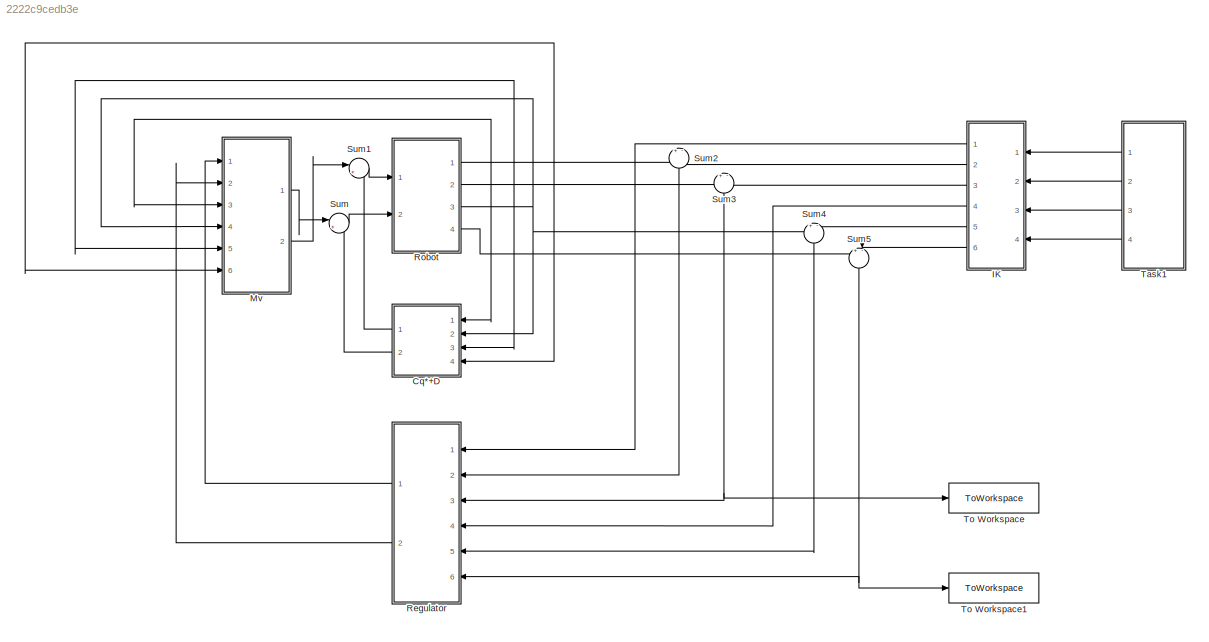
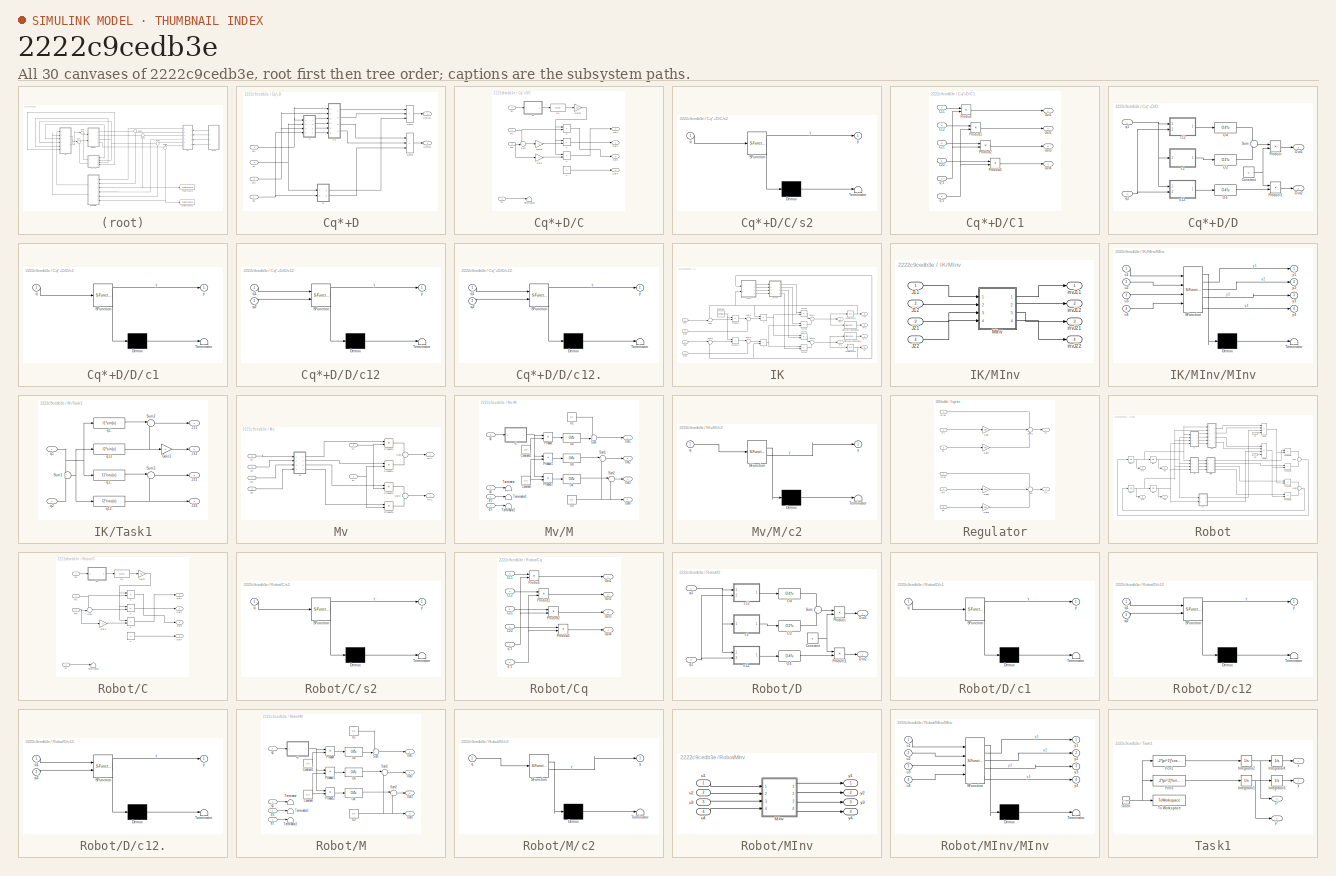
[diagram: thumbnail index - all 30 canvases of the model, root first then tree order]
MODEL slx_2222c9cedb3e
KIND model
CONFIG AbsTol = auto
CONFIG EnableMultiTasking = off
CONFIG FixedStep = 0.4
CONFIG MaxStep = auto
CONFIG MinStep = auto
CONFIG RelTol = 1e-6
CONFIG SampleTimeConstraint = Unconstrained
CONFIG Solver = ode45
CONFIG SolverName = ode45
CONFIG StartTime = 0.0
CONFIG StopTime = T
BLOCK [SubSystem] Cq*+D
  Ports = [4, 2]
  RequestExecContextInheritance = off
BLOCK [SubSystem] Cq*+D/C
  Ports = [4, 4]
  RequestExecContextInheritance = off
BLOCK [Product] Cq*+D/C/1
  Ports = [2, 1]
BLOCK [Product] Cq*+D/C/2
  Ports = [2, 1]
BLOCK [Product] Cq*+D/C/3
  Ports = [2, 1]
BLOCK [Constant] Cq*+D/C/4
  Value = 0
BLOCK [Gain] Cq*+D/C/Gain
  Gain = -1
BLOCK [Gain] Cq*+D/C/Gain1
  Gain = -1
BLOCK [Gain] Cq*+D/C/Gain2
  Gain = 0.3
BLOCK [Fcn] Cq*+D/C/O4
  Expr = O4*u
BLOCK [Outport] Cq*+D/C/Out1
BLOCK [Outport] Cq*+D/C/Out2
  Port = 2
BLOCK [Outport] Cq*+D/C/Out3
  Port = 3
BLOCK [Outport] Cq*+D/C/Out4
  Port = 4
BLOCK [Sum] Cq*+D/C/Sum
  Inputs = ++|
  Ports = [2, 1]
BLOCK [Terminator] Cq*+D/C/Terminator
BLOCK [Inport] Cq*+D/C/q*1
BLOCK [Inport] Cq*+D/C/q*2
  Port = 3
BLOCK [Inport] Cq*+D/C/q1
  Port = 2
BLOCK [Inport] Cq*+D/C/q2
  Port = 4
BLOCK [SubSystem] Cq*+D/C/s2
  ErrorFcn = Stateflow.Translate.translate
  PermitHierarchicalResolution = ExplicitOnly
  Ports = [1, 1]
  RequestExecContextInheritance = off
  SFBlockType = MATLAB Function
  TreatAsAtomicUnit = on
BLOCK [Demux] Cq*+D/C/s2/ Demux 
  Outputs = 1
  Ports = [1, 1]
BLOCK [S-Function] Cq*+D/C/s2/ SFunction 
  EnableBusSupport = on
  FunctionName = sf_sfun
  PortCounts = [1 2]
  Ports = [1, 2]
  SFcnIsStateOwnerBlock = off
  SFunctionDeploymentMode = off
  Tag = Stateflow S-Function 7
BLOCK [Terminator] Cq*+D/C/s2/ Terminator 
BLOCK [Inport] Cq*+D/C/s2/q
BLOCK [Outport] Cq*+D/C/s2/y
BLOCK [SubSystem] Cq*+D/C1
  Ports = [6, 4]
  RequestExecContextInheritance = off
BLOCK [Inport] Cq*+D/C1/C11
  Port = 3
BLOCK [Inport] Cq*+D/C1/C12
  Port = 4
BLOCK [Inport] Cq*+D/C1/C21
  Port = 5
BLOCK [Inport] Cq*+D/C1/C22
  Port = 6
BLOCK [Outport] Cq*+D/C1/Out1
BLOCK [Outport] Cq*+D/C1/Out2
  Port = 2
BLOCK [Outport] Cq*+D/C1/Out3
  Port = 3
BLOCK [Outport] Cq*+D/C1/Out4
  Port = 4
BLOCK [Product] Cq*+D/C1/Product
  Ports = [2, 1]
BLOCK [Product] Cq*+D/C1/Product1
  Ports = [2, 1]
BLOCK [Product] Cq*+D/C1/Product2
  Ports = [2, 1]
BLOCK [Product] Cq*+D/C1/Product3
  Ports = [2, 1]
BLOCK [Inport] Cq*+D/C1/q*1
BLOCK [Inport] Cq*+D/C1/q*2
  Port = 2
BLOCK [Outport] Cq*+D/Cq*1+d
BLOCK [Outport] Cq*+D/Cq*2+d
  Port = 2
BLOCK [SubSystem] Cq*+D/D
  Ports = [2, 2]
  RequestExecContextInheritance = off
BLOCK [Constant] Cq*+D/D/Constant
  Value = g
BLOCK [Fcn] Cq*+D/D/O2
  Expr = O2*u
BLOCK [Fcn] Cq*+D/D/O4
  Expr = O4*u
BLOCK [Fcn] Cq*+D/D/O4.
  Expr = O4*u
BLOCK [Outport] Cq*+D/D/Out1
BLOCK [Outport] Cq*+D/D/Out2
  Port = 2
BLOCK [Product] Cq*+D/D/Product
  Ports = [2, 1]
BLOCK [Product] Cq*+D/D/Product1
  Ports = [2, 1]
BLOCK [Sum] Cq*+D/D/Sum
  Ports = [2, 1]
BLOCK [SubSystem] Cq*+D/D/c1
  ErrorFcn = Stateflow.Translate.translate
  PermitHierarchicalResolution = ExplicitOnly
  Ports = [1, 1]
  RequestExecContextInheritance = off
  SFBlockType = MATLAB Function
  TreatAsAtomicUnit = on
BLOCK [Demux] Cq*+D/D/c1/ Demux 
  Outputs = 1
  Ports = [1, 1]
BLOCK [S-Function] Cq*+D/D/c1/ SFunction 
  EnableBusSupport = on
  FunctionName = sf_sfun
  PortCounts = [1 2]
  Ports = [1, 2]
  SFcnIsStateOwnerBlock = off
  SFunctionDeploymentMode = off
  Tag = Stateflow S-Function 8
BLOCK [Terminator] Cq*+D/D/c1/ Terminator 
BLOCK [Inport] Cq*+D/D/c1/q
BLOCK [Outport] Cq*+D/D/c1/y
BLOCK [SubSystem] Cq*+D/D/c12
  ErrorFcn = Stateflow.Translate.translate
  PermitHierarchicalResolution = ExplicitOnly
  Ports = [2, 1]
  RequestExecContextInheritance = off
  SFBlockType = MATLAB Function
  TreatAsAtomicUnit = on
BLOCK [SubSystem] Cq*+D/D/c12.
  ErrorFcn = Stateflow.Translate.translate
  PermitHierarchicalResolution = ExplicitOnly
  Ports = [2, 1]
  RequestExecContextInheritance = off
  SFBlockType = MATLAB Function
  TreatAsAtomicUnit = on
BLOCK [Demux] Cq*+D/D/c12./ Demux 
  Outputs = 1
  Ports = [1, 1]
BLOCK [S-Function] Cq*+D/D/c12./ SFunction 
  EnableBusSupport = on
  FunctionName = sf_sfun
  PortCounts = [2 2]
  Ports = [2, 2]
  SFcnIsStateOwnerBlock = off
  SFunctionDeploymentMode = off
  Tag = Stateflow S-Function 10
BLOCK [Terminator] Cq*+D/D/c12./ Terminator 
BLOCK [Inport] Cq*+D/D/c12./q1
BLOCK [Inport] Cq*+D/D/c12./q2
  Port = 2
BLOCK [Outport] Cq*+D/D/c12./y
BLOCK [Demux] Cq*+D/D/c12/ Demux 
  Outputs = 1
  Ports = [1, 1]
BLOCK [S-Function] Cq*+D/D/c12/ SFunction 
  EnableBusSupport = on
  FunctionName = sf_sfun
  PortCounts = [2 2]
  Ports = [2, 2]
  SFcnIsStateOwnerBlock = off
  SFunctionDeploymentMode = off
  Tag = Stateflow S-Function 9
BLOCK [Terminator] Cq*+D/D/c12/ Terminator 
BLOCK [Inport] Cq*+D/D/c12/q1
BLOCK [Inport] Cq*+D/D/c12/q2
  Port = 2
BLOCK [Outport] Cq*+D/D/c12/y
BLOCK [Inport] Cq*+D/D/q1
  NameLocation = top
BLOCK [Inport] Cq*+D/D/q2
  Port = 2
BLOCK [Sum] Cq*+D/Sum2
  IconShape = rectangular
  Inputs = +++
  Ports = [3, 1]
BLOCK [Sum] Cq*+D/Sum3
  IconShape = rectangular
  Inputs = +++
  Ports = [3, 1]
BLOCK [Inport] Cq*+D/q*1
BLOCK [Inport] Cq*+D/q*2
  Port = 2
BLOCK [Inport] Cq*+D/q1
  Port = 3
BLOCK [Inport] Cq*+D/q2
  Port = 4
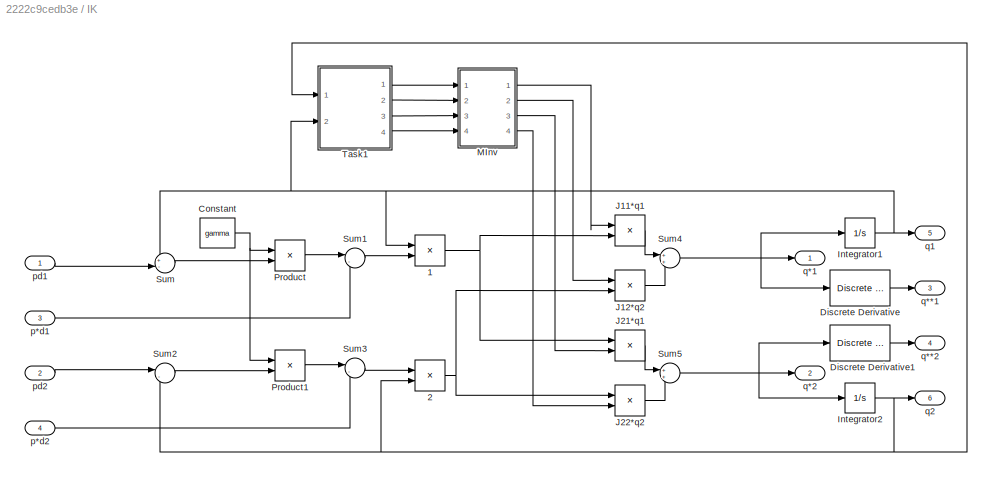
BLOCK [SubSystem] IK
  Ports = [4, 6]
  RequestExecContextInheritance = off
BLOCK [Product] IK/1
  Ports = [2, 1]
BLOCK [Product] IK/2
  Ports = [2, 1]
BLOCK [Constant] IK/Constant
  Value = gamma
BLOCK [Reference] IK/Discrete Derivative  REF=simulink/Discrete/Discrete Derivative
  Ports = [1, 1]
  SourceBlock = simulink/Discrete/Discrete Derivative
  SourceProductBaseCode = SL
  SourceType = Discrete Derivative
BLOCK [Reference] IK/Discrete Derivative1  REF=simulink/Discrete/Discrete Derivative
  Ports = [1, 1]
  SourceBlock = simulink/Discrete/Discrete Derivative
  SourceProductBaseCode = SL
  SourceType = Discrete Derivative
BLOCK [Integrator] IK/Integrator1
  InitialCondition = 0.1
  Ports = [1, 1]
BLOCK [Integrator] IK/Integrator2
  InitialCondition = 0.1
  Ports = [1, 1]
BLOCK [Product] IK/J11*q1
  Ports = [2, 1]
BLOCK [Product] IK/J12*q2
  Ports = [2, 1]
BLOCK [Product] IK/J21*q1
  Ports = [2, 1]
BLOCK [Product] IK/J22*q2
  Ports = [2, 1]
BLOCK [SubSystem] IK/MInv
  Ports = [4, 4]
  RequestExecContextInheritance = off
BLOCK [Inport] IK/MInv/J11
BLOCK [Inport] IK/MInv/J12
  Port = 2
BLOCK [Inport] IK/MInv/J21
  Port = 3
BLOCK [Inport] IK/MInv/J22
  Port = 4
BLOCK [SubSystem] IK/MInv/MInv
  ErrorFcn = Stateflow.Translate.translate
  PermitHierarchicalResolution = ExplicitOnly
  Ports = [4, 4]
  RequestExecContextInheritance = off
  SFBlockType = MATLAB Function
  TreatAsAtomicUnit = on
BLOCK [Demux] IK/MInv/MInv/ Demux 
  Outputs = 1
  Ports = [1, 1]
BLOCK [S-Function] IK/MInv/MInv/ SFunction 
  EnableBusSupport = on
  FunctionName = sf_sfun
  PortCounts = [4 5]
  Ports = [4, 5]
  SFcnIsStateOwnerBlock = off
  SFunctionDeploymentMode = off
  Tag = Stateflow S-Function 11
BLOCK [Terminator] IK/MInv/MInv/ Terminator 
BLOCK [Inport] IK/MInv/MInv/u1
BLOCK [Inport] IK/MInv/MInv/u2
  Port = 2
BLOCK [Inport] IK/MInv/MInv/u3
  Port = 3
BLOCK [Inport] IK/MInv/MInv/u4
  Port = 4
BLOCK [Outport] IK/MInv/MInv/y1
BLOCK [Outport] IK/MInv/MInv/y2
  Port = 2
BLOCK [Outport] IK/MInv/MInv/y3
  Port = 3
BLOCK [Outport] IK/MInv/MInv/y4
  Port = 4
BLOCK [Outport] IK/MInv/invJ11
BLOCK [Outport] IK/MInv/invJ12
  Port = 2
BLOCK [Outport] IK/MInv/invJ21
  Port = 3
BLOCK [Outport] IK/MInv/invJ22
  Port = 4
BLOCK [Product] IK/Product
  Ports = [2, 1]
BLOCK [Product] IK/Product1
  Ports = [2, 1]
BLOCK [Sum] IK/Sum
  Inputs = +-|
  Ports = [2, 1]
BLOCK [Sum] IK/Sum1
  Inputs = |-+
  Ports = [2, 1]
BLOCK [Sum] IK/Sum2
  Inputs = |-+
  Ports = [2, 1]
BLOCK [Sum] IK/Sum3
  Inputs = |-+
  Ports = [2, 1]
BLOCK [Sum] IK/Sum4
  Ports = [2, 1]
BLOCK [Sum] IK/Sum5
  Ports = [2, 1]
BLOCK [SubSystem] IK/Task1
  Ports = [2, 4]
  RequestExecContextInheritance = off
BLOCK [Gain] IK/Task1/Gain1
  Gain = -1
BLOCK [Outport] IK/Task1/J11
BLOCK [Outport] IK/Task1/J12
  Port = 2
BLOCK [Outport] IK/Task1/J21
  Port = 3
BLOCK [Outport] IK/Task1/J22
  Port = 4
BLOCK [Sum] IK/Task1/Sum1
  Ports = [2, 1]
BLOCK [Sum] IK/Task1/Sum2
  Inputs = |--
  Ports = [2, 1]
BLOCK [Sum] IK/Task1/Sum3
  Inputs = |++
  Ports = [2, 1]
BLOCK [Inport] IK/Task1/q1
  Port = 2
BLOCK [Fcn] IK/Task1/q1.
  Expr = l1*sin(u)
BLOCK [Fcn] IK/Task1/q1..
  Expr = l1*cos(u)
BLOCK [Fcn] IK/Task1/q12
  Expr = l2*sin(u)
BLOCK [Fcn] IK/Task1/q12.
  Expr = l2*cos(u)
BLOCK [Inport] IK/Task1/q2
BLOCK [Inport] IK/p*d1
  Port = 3
BLOCK [Inport] IK/p*d2
  Port = 4
BLOCK [Inport] IK/pd1
BLOCK [Inport] IK/pd2
  Port = 2
BLOCK [Outport] IK/q**1
  Port = 3
BLOCK [Outport] IK/q**2
  Port = 4
BLOCK [Outport] IK/q*1
BLOCK [Outport] IK/q*2
  Port = 2
BLOCK [Outport] IK/q1
  Port = 5
BLOCK [Outport] IK/q2
  Port = 6
BLOCK [SubSystem] Mv
  Ports = [6, 2]
  RequestExecContextInheritance = off
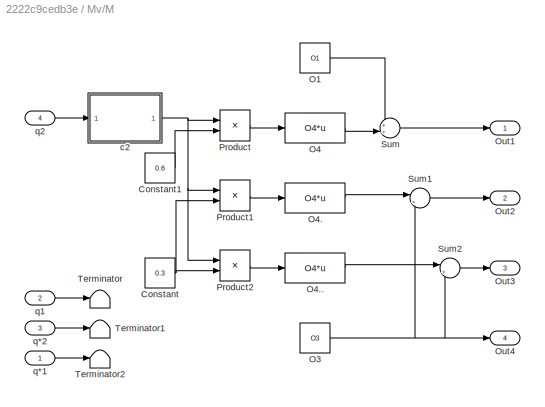
BLOCK [SubSystem] Mv/M
  Ports = [4, 4]
  RequestExecContextInheritance = off
BLOCK [Constant] Mv/M/Constant
  Value = 0.3
BLOCK [Constant] Mv/M/Constant1
  Value = 0.6
BLOCK [Constant] Mv/M/O1
  Value = O1
BLOCK [Constant] Mv/M/O3
  Value = O3
BLOCK [Fcn] Mv/M/O4
  Expr = O4*u
BLOCK [Fcn] Mv/M/O4.
  Expr = O4*u
BLOCK [Fcn] Mv/M/O4..
  Expr = O4*u
BLOCK [Outport] Mv/M/Out1
BLOCK [Outport] Mv/M/Out2
  Port = 2
BLOCK [Outport] Mv/M/Out3
  Port = 3
BLOCK [Outport] Mv/M/Out4
  Port = 4
BLOCK [Product] Mv/M/Product
  Ports = [2, 1]
BLOCK [Product] Mv/M/Product1
  Ports = [2, 1]
BLOCK [Product] Mv/M/Product2
  Ports = [2, 1]
BLOCK [Sum] Mv/M/Sum
  Inputs = ++|
  Ports = [2, 1]
BLOCK [Sum] Mv/M/Sum1
  Inputs = |++
  Ports = [2, 1]
BLOCK [Sum] Mv/M/Sum2
  Inputs = |++
  Ports = [2, 1]
BLOCK [Terminator] Mv/M/Terminator
BLOCK [Terminator] Mv/M/Terminator1
BLOCK [Terminator] Mv/M/Terminator2
BLOCK [SubSystem] Mv/M/c2
  ErrorFcn = Stateflow.Translate.translate
  PermitHierarchicalResolution = ExplicitOnly
  Ports = [1, 1]
  RequestExecContextInheritance = off
  SFBlockType = MATLAB Function
  TreatAsAtomicUnit = on
BLOCK [Demux] Mv/M/c2/ Demux 
  Outputs = 1
  Ports = [1, 1]
BLOCK [S-Function] Mv/M/c2/ SFunction 
  EnableBusSupport = on
  FunctionName = sf_sfun
  PortCounts = [1 2]
  Ports = [1, 2]
  SFcnIsStateOwnerBlock = off
  SFunctionDeploymentMode = off
  Tag = Stateflow S-Function 15
BLOCK [Terminator] Mv/M/c2/ Terminator 
BLOCK [Inport] Mv/M/c2/q
BLOCK [Outport] Mv/M/c2/y
BLOCK [Inport] Mv/M/q*1
BLOCK [Inport] Mv/M/q*2
  Port = 3
BLOCK [Inport] Mv/M/q1
  Port = 2
BLOCK [Inport] Mv/M/q2
  Port = 4
BLOCK [Outport] Mv/MV1
  Port = 2
BLOCK [Outport] Mv/MV2
BLOCK [Product] Mv/Product3
  Ports = [2, 1]
BLOCK [Product] Mv/Product4
  Ports = [2, 1]
BLOCK [Product] Mv/Product5
  Ports = [2, 1]
BLOCK [Product] Mv/Product6
  Ports = [2, 1]
BLOCK [Sum] Mv/Sum
  Ports = [2, 1]
BLOCK [Sum] Mv/Sum1
  Ports = [2, 1]
BLOCK [Inport] Mv/q*1
  Port = 3
BLOCK [Inport] Mv/q*2
  Port = 4
BLOCK [Inport] Mv/q1
  Port = 5
BLOCK [Inport] Mv/q2
  Port = 6
BLOCK [Inport] Mv/v1
BLOCK [Inport] Mv/v2
  Port = 2
BLOCK [SubSystem] Regulator
  Ports = [6, 2]
  RequestExecContextInheritance = off
BLOCK [Outport] Regulator/ v1
BLOCK [Gain] Regulator/Gain
  Gain = Kp1
BLOCK [Gain] Regulator/Gain1
  Gain = Kd1
BLOCK [Gain] Regulator/Gain2
  Gain = Kp1
BLOCK [Gain] Regulator/Gain3
  Gain = Kd1
BLOCK [Sum] Regulator/Sum
  Inputs = +--
  Ports = [3, 1]
BLOCK [Sum] Regulator/Sum1
  Inputs = +--
  Ports = [3, 1]
BLOCK [Inport] Regulator/e*1
  Port = 2
BLOCK [Inport] Regulator/e*2
  Port = 5
BLOCK [Inport] Regulator/e1
  Port = 3
BLOCK [Inport] Regulator/e2
  Port = 6
BLOCK [Inport] Regulator/q**1d
BLOCK [Inport] Regulator/q**2d
  Port = 4
BLOCK [Outport] Regulator/v2
  Port = 2
BLOCK [SubSystem] Robot
  Ports = [2, 4]
  RequestExecContextInheritance = off
BLOCK [SubSystem] Robot/C
  Ports = [4, 4]
  RequestExecContextInheritance = off
BLOCK [Product] Robot/C/1
  Ports = [2, 1]
BLOCK [Product] Robot/C/2
  Ports = [2, 1]
BLOCK [Product] Robot/C/3
  Ports = [2, 1]
BLOCK [Constant] Robot/C/4
  Value = 0
BLOCK [Gain] Robot/C/Gain
  Gain = -1
BLOCK [Gain] Robot/C/Gain2
  Gain = 0.3
BLOCK [Fcn] Robot/C/O4
  Expr = O4*u
BLOCK [Outport] Robot/C/Out1
BLOCK [Outport] Robot/C/Out2
  Port = 2
BLOCK [Outport] Robot/C/Out3
  Port = 3
BLOCK [Outport] Robot/C/Out4
  Port = 4
BLOCK [Sum] Robot/C/Sum
  Inputs = --|
  Ports = [2, 1]
BLOCK [Terminator] Robot/C/Terminator
BLOCK [Inport] Robot/C/q*1
BLOCK [Inport] Robot/C/q*2
  Port = 3
BLOCK [Inport] Robot/C/q1
  Port = 2
BLOCK [Inport] Robot/C/q2
  Port = 4
BLOCK [SubSystem] Robot/C/s2
  ErrorFcn = Stateflow.Translate.translate
  PermitHierarchicalResolution = ExplicitOnly
  Ports = [1, 1]
  RequestExecContextInheritance = off
  SFBlockType = MATLAB Function
  TreatAsAtomicUnit = on
BLOCK [Demux] Robot/C/s2/ Demux 
  Outputs = 1
  Ports = [1, 1]
BLOCK [S-Function] Robot/C/s2/ SFunction 
  EnableBusSupport = on
  FunctionName = sf_sfun
  PortCounts = [1 2]
  Ports = [1, 2]
  SFcnIsStateOwnerBlock = off
  SFunctionDeploymentMode = off
  Tag = Stateflow S-Function 5
BLOCK [Terminator] Robot/C/s2/ Terminator 
BLOCK [Inport] Robot/C/s2/q
BLOCK [Outport] Robot/C/s2/y
BLOCK [SubSystem] Robot/Cq
  Ports = [6, 4]
  RequestExecContextInheritance = off
BLOCK [Inport] Robot/Cq/C11
  Port = 3
BLOCK [Inport] Robot/Cq/C12
  Port = 4
BLOCK [Inport] Robot/Cq/C21
  Port = 5
BLOCK [Inport] Robot/Cq/C22
  Port = 6
BLOCK [Outport] Robot/Cq/Out1
BLOCK [Outport] Robot/Cq/Out2
  Port = 2
BLOCK [Outport] Robot/Cq/Out3
  Port = 3
BLOCK [Outport] Robot/Cq/Out4
  Port = 4
BLOCK [Product] Robot/Cq/Product
  Ports = [2, 1]
BLOCK [Product] Robot/Cq/Product1
  Ports = [2, 1]
BLOCK [Product] Robot/Cq/Product2
  Ports = [2, 1]
BLOCK [Product] Robot/Cq/Product3
  Ports = [2, 1]
BLOCK [Inport] Robot/Cq/q*1
BLOCK [Inport] Robot/Cq/q*2
  Port = 2
BLOCK [SubSystem] Robot/D
  Ports = [2, 2]
  RequestExecContextInheritance = off
BLOCK [Constant] Robot/D/Constant
  Value = g
BLOCK [Fcn] Robot/D/O2
  Expr = O2*u
BLOCK [Fcn] Robot/D/O4
  Expr = O4*u
BLOCK [Fcn] Robot/D/O4.
  Expr = O4*u
BLOCK [Outport] Robot/D/Out1
BLOCK [Outport] Robot/D/Out2
  Port = 2
BLOCK [Product] Robot/D/Product
  Ports = [2, 1]
BLOCK [Product] Robot/D/Product1
  Ports = [2, 1]
BLOCK [Sum] Robot/D/Sum
  Ports = [2, 1]
BLOCK [SubSystem] Robot/D/c1
  ErrorFcn = Stateflow.Translate.translate
  PermitHierarchicalResolution = ExplicitOnly
  Ports = [1, 1]
  RequestExecContextInheritance = off
  SFBlockType = MATLAB Function
  TreatAsAtomicUnit = on
BLOCK [Demux] Robot/D/c1/ Demux 
  Outputs = 1
  Ports = [1, 1]
BLOCK [S-Function] Robot/D/c1/ SFunction 
  EnableBusSupport = on
  FunctionName = sf_sfun
  PortCounts = [1 2]
  Ports = [1, 2]
  SFcnIsStateOwnerBlock = off
  SFunctionDeploymentMode = off
  Tag = Stateflow S-Function 3
BLOCK [Terminator] Robot/D/c1/ Terminator 
BLOCK [Inport] Robot/D/c1/q
BLOCK [Outport] Robot/D/c1/y
BLOCK [SubSystem] Robot/D/c12
  ErrorFcn = Stateflow.Translate.translate
  PermitHierarchicalResolution = ExplicitOnly
  Ports = [2, 1]
  RequestExecContextInheritance = off
  SFBlockType = MATLAB Function
  TreatAsAtomicUnit = on
BLOCK [SubSystem] Robot/D/c12.
  ErrorFcn = Stateflow.Translate.translate
  PermitHierarchicalResolution = ExplicitOnly
  Ports = [2, 1]
  RequestExecContextInheritance = off
  SFBlockType = MATLAB Function
  TreatAsAtomicUnit = on
BLOCK [Demux] Robot/D/c12./ Demux 
  Outputs = 1
  Ports = [1, 1]
BLOCK [S-Function] Robot/D/c12./ SFunction 
  EnableBusSupport = on
  FunctionName = sf_sfun
  PortCounts = [2 2]
  Ports = [2, 2]
  SFcnIsStateOwnerBlock = off
  SFunctionDeploymentMode = off
  Tag = Stateflow S-Function 1
BLOCK [Terminator] Robot/D/c12./ Terminator 
BLOCK [Inport] Robot/D/c12./q1
BLOCK [Inport] Robot/D/c12./q2
  Port = 2
BLOCK [Outport] Robot/D/c12./y
BLOCK [Demux] Robot/D/c12/ Demux 
  Outputs = 1
  Ports = [1, 1]
BLOCK [S-Function] Robot/D/c12/ SFunction 
  EnableBusSupport = on
  FunctionName = sf_sfun
  PortCounts = [2 2]
  Ports = [2, 2]
  SFcnIsStateOwnerBlock = off
  SFunctionDeploymentMode = off
  Tag = Stateflow S-Function 2
BLOCK [Terminator] Robot/D/c12/ Terminator 
BLOCK [Inport] Robot/D/c12/q1
BLOCK [Inport] Robot/D/c12/q2
  Port = 2
BLOCK [Outport] Robot/D/c12/y
BLOCK [Inport] Robot/D/q1
  NameLocation = top
BLOCK [Inport] Robot/D/q2
  Port = 2
BLOCK [Integrator] Robot/I q*1
  Ports = [1, 1]
BLOCK [Integrator] Robot/I q*2
  Ports = [1, 1]
BLOCK [Integrator] Robot/I q1
  Ports = [1, 1]
BLOCK [Integrator] Robot/I q2
  Ports = [1, 1]
BLOCK [SubSystem] Robot/M
  Ports = [4, 4]
  RequestExecContextInheritance = off
BLOCK [Constant] Robot/M/Constant
  Value = 0.3
BLOCK [Constant] Robot/M/Constant1
  Value = 0.6
BLOCK [Constant] Robot/M/O1
  Value = O1
BLOCK [Constant] Robot/M/O3
  Value = O3
BLOCK [Fcn] Robot/M/O4
  Expr = O4*u
BLOCK [Fcn] Robot/M/O4.
  Expr = O4*u
BLOCK [Fcn] Robot/M/O4..
  Expr = O4*u
BLOCK [Outport] Robot/M/Out1
BLOCK [Outport] Robot/M/Out2
  Port = 2
BLOCK [Outport] Robot/M/Out3
  Port = 3
BLOCK [Outport] Robot/M/Out4
  Port = 4
BLOCK [Product] Robot/M/Product
  Ports = [2, 1]
BLOCK [Product] Robot/M/Product1
  Ports = [2, 1]
BLOCK [Product] Robot/M/Product2
  Ports = [2, 1]
BLOCK [Sum] Robot/M/Sum
  Inputs = ++|
  Ports = [2, 1]
BLOCK [Sum] Robot/M/Sum1
  Inputs = |++
  Ports = [2, 1]
BLOCK [Sum] Robot/M/Sum2
  Inputs = |++
  Ports = [2, 1]
BLOCK [Terminator] Robot/M/Terminator
BLOCK [Terminator] Robot/M/Terminator1
BLOCK [Terminator] Robot/M/Terminator2
BLOCK [SubSystem] Robot/M/c2
  ErrorFcn = Stateflow.Translate.translate
  PermitHierarchicalResolution = ExplicitOnly
  Ports = [1, 1]
  RequestExecContextInheritance = off
  SFBlockType = MATLAB Function
  TreatAsAtomicUnit = on
BLOCK [Demux] Robot/M/c2/ Demux 
  Outputs = 1
  Ports = [1, 1]
BLOCK [S-Function] Robot/M/c2/ SFunction 
  EnableBusSupport = on
  FunctionName = sf_sfun
  PortCounts = [1 2]
  Ports = [1, 2]
  SFcnIsStateOwnerBlock = off
  SFunctionDeploymentMode = off
  Tag = Stateflow S-Function 4
BLOCK [Terminator] Robot/M/c2/ Terminator 
BLOCK [Inport] Robot/M/c2/q
BLOCK [Outport] Robot/M/c2/y
BLOCK [Inport] Robot/M/q*1
BLOCK [Inport] Robot/M/q*2
  Port = 3
BLOCK [Inport] Robot/M/q1
  Port = 2
BLOCK [Inport] Robot/M/q2
  Port = 4
BLOCK [SubSystem] Robot/MInv
  Ports = [4, 4]
  RequestExecContextInheritance = off
BLOCK [SubSystem] Robot/MInv/MInv
  ErrorFcn = Stateflow.Translate.translate
  PermitHierarchicalResolution = ExplicitOnly
  Ports = [4, 4]
  RequestExecContextInheritance = off
  SFBlockType = MATLAB Function
  TreatAsAtomicUnit = on
BLOCK [Demux] Robot/MInv/MInv/ Demux 
  Outputs = 1
  Ports = [1, 1]
BLOCK [S-Function] Robot/MInv/MInv/ SFunction 
  EnableBusSupport = on
  FunctionName = sf_sfun
  PortCounts = [4 5]
  Ports = [4, 5]
  SFcnIsStateOwnerBlock = off
  SFunctionDeploymentMode = off
  Tag = Stateflow S-Function 6
BLOCK [Terminator] Robot/MInv/MInv/ Terminator 
BLOCK [Inport] Robot/MInv/MInv/u1
BLOCK [Inport] Robot/MInv/MInv/u2
  Port = 2
BLOCK [Inport] Robot/MInv/MInv/u3
  Port = 3
BLOCK [Inport] Robot/MInv/MInv/u4
  Port = 4
BLOCK [Outport] Robot/MInv/MInv/y1
BLOCK [Outport] Robot/MInv/MInv/y2
  Port = 2
BLOCK [Outport] Robot/MInv/MInv/y3
  Port = 3
BLOCK [Outport] Robot/MInv/MInv/y4
  Port = 4
BLOCK [Inport] Robot/MInv/u1
BLOCK [Inport] Robot/MInv/u2
  Port = 2
BLOCK [Inport] Robot/MInv/u3
  Port = 3
BLOCK [Inport] Robot/MInv/u4
  Port = 4
BLOCK [Outport] Robot/MInv/y1
BLOCK [Outport] Robot/MInv/y2
  Port = 2
BLOCK [Outport] Robot/MInv/y3
  Port = 3
BLOCK [Outport] Robot/MInv/y4
  Port = 4
BLOCK [Product] Robot/Product3
  Ports = [2, 1]
BLOCK [Product] Robot/Product4
  Ports = [2, 1]
BLOCK [Product] Robot/Product5
  Ports = [2, 1]
BLOCK [Product] Robot/Product6
  Ports = [2, 1]
BLOCK [Sum] Robot/Sum
  Ports = [2, 1]
BLOCK [Sum] Robot/Sum1
  Ports = [2, 1]
BLOCK [Sum] Robot/Sum2
  IconShape = rectangular
  Inputs = ---+
  Ports = [4, 1]
BLOCK [Sum] Robot/Sum3
  IconShape = rectangular
  Inputs = ---+
  Ports = [4, 1]
BLOCK [Outport] Robot/q*1
BLOCK [Outport] Robot/q*2
  Port = 3
BLOCK [Outport] Robot/q1
  Port = 2
BLOCK [Outport] Robot/q2
  Port = 4
BLOCK [Inport] Robot/u1
BLOCK [Inport] Robot/u2
  Port = 2
BLOCK [Sum] Sum
  Inputs = |++
  Ports = [2, 1]
BLOCK [Sum] Sum1
  Inputs = |++
  Ports = [2, 1]
BLOCK [Sum] Sum2
  Inputs = +-
  NameLocation = left
  Ports = [2, 1]
BLOCK [Sum] Sum3
  Inputs = +-
  NameLocation = left
  Ports = [2, 1]
BLOCK [Sum] Sum4
  Inputs = +-
  NameLocation = left
  Ports = [2, 1]
BLOCK [Sum] Sum5
  Inputs = +-
  NameLocation = left
  Ports = [2, 1]
BLOCK [SubSystem] Task1
  Ports = [0, 4]
  RequestExecContextInheritance = off
BLOCK [Clock] Task1/Clock
BLOCK [Fcn] Task1/Fcn1
  Expr = -2*(pi^2)*cos(2*pi*u)
BLOCK [Fcn] Task1/Fcn3
  Expr = -2*(pi^2)*sin(2*pi*u)
BLOCK [Integrator] Task1/Integrator1
  Ports = [1, 1]
BLOCK [Integrator] Task1/Integrator2
  InitialCondition = 1/4
  Ports = [1, 1]
BLOCK [Integrator] Task1/Integrator3
  InitialCondition = 2
  Ports = [1, 1]
BLOCK [Integrator] Task1/Integrator4
  Ports = [1, 1]
BLOCK [ToWorkspace] Task1/To Workspace
  FixptAsFi = on
  MaxDataPoints = inf
  Ports = [1]
  SampleTime = -1
  SaveFormat = Timeseries
  VariableName = time
BLOCK [Outport] Task1/x
BLOCK [Outport] Task1/x*
  Port = 3
BLOCK [Outport] Task1/y
  Port = 2
BLOCK [Outport] Task1/y*
  Port = 4
BLOCK [ToWorkspace] To Workspace
  FixptAsFi = on
  MaxDataPoints = inf
  Ports = [1]
  SampleTime = -1
  VariableName = e1
BLOCK [ToWorkspace] To Workspace1
  FixptAsFi = on
  MaxDataPoints = inf
  Ports = [1]
  SampleTime = -1
  VariableName = e2
LINE Cq*+D/C/1:1 -> Cq*+D/C/Out1:1
LINE Cq*+D/C/2:1 -> Cq*+D/C/Out2:1
LINE Cq*+D/C/3:1 -> Cq*+D/C/Out3:1
LINE Cq*+D/C/4:1 -> Cq*+D/C/Out4:1
LINE Cq*+D/C/Gain1:1 -> Cq*+D/C/2:2
NET Cq*+D/C/Gain2:1 -> Cq*+D/C/1:1, Cq*+D/C/2:1, Cq*+D/C/3:1
LINE Cq*+D/C/Gain:1 -> Cq*+D/C/1:2
LINE Cq*+D/C/O4:1 -> Cq*+D/C/Gain2:1
LINE Cq*+D/C/Sum:1 -> Cq*+D/C/Gain1:1
NET Cq*+D/C/q*1:1 -> Cq*+D/C/3:2, Cq*+D/C/Sum:1
NET Cq*+D/C/q*2:1 -> Cq*+D/C/Gain:1, Cq*+D/C/Sum:2
LINE Cq*+D/C/q1:1 -> Cq*+D/C/Terminator:1
LINE Cq*+D/C/q2:1 -> Cq*+D/C/s2:1
LINE Cq*+D/C/s2:1 -> Cq*+D/C/O4:1
LINE Cq*+D/C1/C11:1 -> Cq*+D/C1/Product:1
LINE Cq*+D/C1/C12:1 -> Cq*+D/C1/Product1:1
LINE Cq*+D/C1/C21:1 -> Cq*+D/C1/Product2:1
LINE Cq*+D/C1/C22:1 -> Cq*+D/C1/Product3:1
LINE Cq*+D/C1/Product1:1 -> Cq*+D/C1/Out2:1
LINE Cq*+D/C1/Product2:1 -> Cq*+D/C1/Out3:1
LINE Cq*+D/C1/Product3:1 -> Cq*+D/C1/Out4:1
LINE Cq*+D/C1/Product:1 -> Cq*+D/C1/Out1:1
NET Cq*+D/C1/q*1:1 -> Cq*+D/C1/Product2:2, Cq*+D/C1/Product:2
NET Cq*+D/C1/q*2:1 -> Cq*+D/C1/Product1:2, Cq*+D/C1/Product3:2
LINE Cq*+D/C1:1 -> Cq*+D/Sum2:1
LINE Cq*+D/C1:2 -> Cq*+D/Sum2:2
LINE Cq*+D/C1:3 -> Cq*+D/Sum3:1
LINE Cq*+D/C1:4 -> Cq*+D/Sum3:2
LINE Cq*+D/C:1 -> Cq*+D/C1:3
LINE Cq*+D/C:2 -> Cq*+D/C1:4
LINE Cq*+D/C:3 -> Cq*+D/C1:5
LINE Cq*+D/C:4 -> Cq*+D/C1:6
NET Cq*+D/D/Constant:1 -> Cq*+D/D/Product1:1, Cq*+D/D/Product:2
LINE Cq*+D/D/O2:1 -> Cq*+D/D/Sum:2
LINE Cq*+D/D/O4.:1 -> Cq*+D/D/Product1:2
LINE Cq*+D/D/O4:1 -> Cq*+D/D/Sum:1
LINE Cq*+D/D/Product1:1 -> Cq*+D/D/Out2:1
LINE Cq*+D/D/Product:1 -> Cq*+D/D/Out1:1
LINE Cq*+D/D/Sum:1 -> Cq*+D/D/Product:1
LINE Cq*+D/D/c12.:1 -> Cq*+D/D/O4.:1
LINE Cq*+D/D/c12:1 -> Cq*+D/D/O4:1
LINE Cq*+D/D/c1:1 -> Cq*+D/D/O2:1
NET Cq*+D/D/q1:1 -> Cq*+D/D/c12.:1, Cq*+D/D/c12:1, Cq*+D/D/c1:1
NET Cq*+D/D/q2:1 -> Cq*+D/D/c12.:2, Cq*+D/D/c12:2
LINE Cq*+D/D:1 -> Cq*+D/Sum2:3
LINE Cq*+D/D:2 -> Cq*+D/Sum3:3
LINE Cq*+D/Sum2:1 -> Cq*+D/Cq*1+d:1
LINE Cq*+D/Sum3:1 -> Cq*+D/Cq*2+d:1
NET Cq*+D/q*1:1 -> Cq*+D/C1:1, Cq*+D/C:1
NET Cq*+D/q*2:1 -> Cq*+D/C1:2, Cq*+D/C:3
NET Cq*+D/q1:1 -> Cq*+D/C:2, Cq*+D/D:1
NET Cq*+D/q2:1 -> Cq*+D/C:4, Cq*+D/D:2
LINE Cq*+D:1 -> Sum1:2
LINE Cq*+D:2 -> Sum:2
NET IK/1:1 -> IK/J11*q1:2, IK/J21*q1:1
NET IK/2:1 -> IK/J12*q2:2, IK/J22*q2:1
NET IK/Constant:1 -> IK/Product1:1, IK/Product:1
LINE IK/Discrete Derivative1:1 -> IK/q**2:1
LINE IK/Discrete Derivative:1 -> IK/q**1:1
NET IK/Integrator1:1 -> IK/1:1, IK/Sum:1, IK/Task1:2, IK/q1:1
NET IK/Integrator2:1 -> IK/2:2, IK/Sum2:2, IK/Task1:1, IK/q2:1
LINE IK/J11*q1:1 -> IK/Sum4:1
LINE IK/J12*q2:1 -> IK/Sum4:2
LINE IK/J21*q1:1 -> IK/Sum5:1
LINE IK/J22*q2:1 -> IK/Sum5:2
LINE IK/MInv/J11:1 -> IK/MInv/MInv:1
LINE IK/MInv/J12:1 -> IK/MInv/MInv:2
LINE IK/MInv/J21:1 -> IK/MInv/MInv:3
LINE IK/MInv/J22:1 -> IK/MInv/MInv:4
LINE IK/MInv/MInv:1 -> IK/MInv/invJ11:1
LINE IK/MInv/MInv:2 -> IK/MInv/invJ12:1
LINE IK/MInv/MInv:3 -> IK/MInv/invJ21:1
LINE IK/MInv/MInv:4 -> IK/MInv/invJ22:1
LINE IK/MInv:1 -> IK/J11*q1:1
LINE IK/MInv:2 -> IK/J12*q2:1
LINE IK/MInv:3 -> IK/J21*q1:2
LINE IK/MInv:4 -> IK/J22*q2:2
LINE IK/Product1:1 -> IK/Sum3:1
LINE IK/Product:1 -> IK/Sum1:1
LINE IK/Sum1:1 -> IK/1:2
LINE IK/Sum2:1 -> IK/Product1:2
LINE IK/Sum3:1 -> IK/2:1
NET IK/Sum4:1 -> IK/Discrete Derivative:1, IK/Integrator1:1, IK/q*1:1
NET IK/Sum5:1 -> IK/Discrete Derivative1:1, IK/Integrator2:1, IK/q*2:1
LINE IK/Sum:1 -> IK/Product:2
LINE IK/Task1/Gain1:1 -> IK/Task1/J12:1
NET IK/Task1/Sum1:1 -> IK/Task1/q12.:1, IK/Task1/q12:1
LINE IK/Task1/Sum2:1 -> IK/Task1/J11:1
LINE IK/Task1/Sum3:1 -> IK/Task1/J21:1
LINE IK/Task1/q1..:1 -> IK/Task1/Sum3:1
LINE IK/Task1/q1.:1 -> IK/Task1/Sum2:1
NET IK/Task1/q12.:1 -> IK/Task1/J22:1, IK/Task1/Sum3:2
NET IK/Task1/q12:1 -> IK/Task1/Gain1:1, IK/Task1/Sum2:2
NET IK/Task1/q1:1 -> IK/Task1/Sum1:1, IK/Task1/q1..:1, IK/Task1/q1.:1
LINE IK/Task1/q2:1 -> IK/Task1/Sum1:2
LINE IK/Task1:1 -> IK/MInv:1
LINE IK/Task1:2 -> IK/MInv:2
LINE IK/Task1:3 -> IK/MInv:3
LINE IK/Task1:4 -> IK/MInv:4
LINE IK/p*d1:1 -> IK/Sum1:2
LINE IK/p*d2:1 -> IK/Sum3:2
LINE IK/pd1:1 -> IK/Sum:2
LINE IK/pd2:1 -> IK/Sum2:1
LINE IK:1 -> Regulator:1
LINE IK:2 -> Sum2:2
LINE IK:3 -> Sum3:2
LINE IK:4 -> Regulator:4
LINE IK:5 -> Sum4:2
LINE IK:6 -> Sum5:2
LINE Mv/M/Constant1:1 -> Mv/M/Product:2
NET Mv/M/Constant:1 -> Mv/M/Product1:2, Mv/M/Product2:2
LINE Mv/M/O1:1 -> Mv/M/Sum:1
NET Mv/M/O3:1 -> Mv/M/Out4:1, Mv/M/Sum1:2, Mv/M/Sum2:2
LINE Mv/M/O4..:1 -> Mv/M/Sum2:1
LINE Mv/M/O4.:1 -> Mv/M/Sum1:1
LINE Mv/M/O4:1 -> Mv/M/Sum:2
LINE Mv/M/Product1:1 -> Mv/M/O4.:1
LINE Mv/M/Product2:1 -> Mv/M/O4..:1
LINE Mv/M/Product:1 -> Mv/M/O4:1
LINE Mv/M/Sum1:1 -> Mv/M/Out2:1
LINE Mv/M/Sum2:1 -> Mv/M/Out3:1
LINE Mv/M/Sum:1 -> Mv/M/Out1:1
NET Mv/M/c2:1 -> Mv/M/Product1:1, Mv/M/Product2:1, Mv/M/Product:1
LINE Mv/M/q*1:1 -> Mv/M/Terminator2:1
LINE Mv/M/q*2:1 -> Mv/M/Terminator1:1
LINE Mv/M/q1:1 -> Mv/M/Terminator:1
LINE Mv/M/q2:1 -> Mv/M/c2:1
LINE Mv/M:1 -> Mv/Product3:1
LINE Mv/M:2 -> Mv/Product4:1
LINE Mv/M:3 -> Mv/Product5:1
LINE Mv/M:4 -> Mv/Product6:1
LINE Mv/Product3:1 -> Mv/Sum:1
LINE Mv/Product4:1 -> Mv/Sum:2
LINE Mv/Product5:1 -> Mv/Sum1:1
LINE Mv/Product6:1 -> Mv/Sum1:2
LINE Mv/Sum1:1 -> Mv/MV2:1
LINE Mv/Sum:1 -> Mv/MV1:1
LINE Mv/q*1:1 -> Mv/M:1
LINE Mv/q*2:1 -> Mv/M:3
LINE Mv/q1:1 -> Mv/M:2
LINE Mv/q2:1 -> Mv/M:4
NET Mv/v1:1 -> Mv/Product3:2, Mv/Product5:2
NET Mv/v2:1 -> Mv/Product4:2, Mv/Product6:2
LINE Mv:1 -> Sum:1
LINE Mv:2 -> Sum1:1
LINE Regulator/Gain1:1 -> Regulator/Sum1:3
LINE Regulator/Gain2:1 -> Regulator/Sum:2
LINE Regulator/Gain3:1 -> Regulator/Sum:3
LINE Regulator/Gain:1 -> Regulator/Sum1:2
LINE Regulator/Sum1:1 -> Regulator/ v1:1
LINE Regulator/Sum:1 -> Regulator/v2:1
LINE Regulator/e*1:1 -> Regulator/Gain:1
LINE Regulator/e*2:1 -> Regulator/Gain2:1
LINE Regulator/e1:1 -> Regulator/Gain1:1
LINE Regulator/e2:1 -> Regulator/Gain3:1
LINE Regulator/q**1d:1 -> Regulator/Sum1:1
LINE Regulator/q**2d:1 -> Regulator/Sum:1
LINE Regulator:1 -> Mv:1
LINE Regulator:2 -> Mv:2
LINE Robot/C/1:1 -> Robot/C/Out1:1
LINE Robot/C/2:1 -> Robot/C/Out2:1
LINE Robot/C/3:1 -> Robot/C/Out3:1
LINE Robot/C/4:1 -> Robot/C/Out4:1
NET Robot/C/Gain2:1 -> Robot/C/1:1, Robot/C/2:1, Robot/C/3:1
LINE Robot/C/Gain:1 -> Robot/C/1:2
LINE Robot/C/O4:1 -> Robot/C/Gain2:1
LINE Robot/C/Sum:1 -> Robot/C/2:2
NET Robot/C/q*1:1 -> Robot/C/3:2, Robot/C/Sum:1
NET Robot/C/q*2:1 -> Robot/C/Gain:1, Robot/C/Sum:2
LINE Robot/C/q1:1 -> Robot/C/Terminator:1
LINE Robot/C/q2:1 -> Robot/C/s2:1
LINE Robot/C/s2:1 -> Robot/C/O4:1
LINE Robot/C:1 -> Robot/Cq:3
LINE Robot/C:2 -> Robot/Cq:4
LINE Robot/C:3 -> Robot/Cq:5
LINE Robot/C:4 -> Robot/Cq:6
LINE Robot/Cq/C11:1 -> Robot/Cq/Product:1
LINE Robot/Cq/C12:1 -> Robot/Cq/Product1:1
LINE Robot/Cq/C21:1 -> Robot/Cq/Product2:1
LINE Robot/Cq/C22:1 -> Robot/Cq/Product3:1
LINE Robot/Cq/Product1:1 -> Robot/Cq/Out2:1
LINE Robot/Cq/Product2:1 -> Robot/Cq/Out3:1
LINE Robot/Cq/Product3:1 -> Robot/Cq/Out4:1
LINE Robot/Cq/Product:1 -> Robot/Cq/Out1:1
NET Robot/Cq/q*1:1 -> Robot/Cq/Product2:2, Robot/Cq/Product:2
NET Robot/Cq/q*2:1 -> Robot/Cq/Product1:2, Robot/Cq/Product3:2
LINE Robot/Cq:1 -> Robot/Sum2:1
LINE Robot/Cq:2 -> Robot/Sum2:2
LINE Robot/Cq:3 -> Robot/Sum3:1
LINE Robot/Cq:4 -> Robot/Sum3:2
NET Robot/D/Constant:1 -> Robot/D/Product1:1, Robot/D/Product:2
LINE Robot/D/O2:1 -> Robot/D/Sum:2
LINE Robot/D/O4.:1 -> Robot/D/Product1:2
LINE Robot/D/O4:1 -> Robot/D/Sum:1
LINE Robot/D/Product1:1 -> Robot/D/Out2:1
LINE Robot/D/Product:1 -> Robot/D/Out1:1
LINE Robot/D/Sum:1 -> Robot/D/Product:1
LINE Robot/D/c12.:1 -> Robot/D/O4.:1
LINE Robot/D/c12:1 -> Robot/D/O4:1
LINE Robot/D/c1:1 -> Robot/D/O2:1
NET Robot/D/q1:1 -> Robot/D/c12.:1, Robot/D/c12:1, Robot/D/c1:1
NET Robot/D/q2:1 -> Robot/D/c12.:2, Robot/D/c12:2
LINE Robot/D:1 -> Robot/Sum2:3
LINE Robot/D:2 -> Robot/Sum3:3
NET Robot/I q*1:1 -> Robot/C:1, Robot/Cq:1, Robot/I q1:1, Robot/M:1, Robot/q*1:1
NET Robot/I q*2:1 -> Robot/C:3, Robot/Cq:2, Robot/I q2:1, Robot/M:3, Robot/q*2:1
NET Robot/I q1:1 -> Robot/C:2, Robot/D:1, Robot/M:2, Robot/q1:1
NET Robot/I q2:1 -> Robot/C:4, Robot/D:2, Robot/M:4, Robot/q2:1
LINE Robot/M/Constant1:1 -> Robot/M/Product:2
NET Robot/M/Constant:1 -> Robot/M/Product1:2, Robot/M/Product2:2
LINE Robot/M/O1:1 -> Robot/M/Sum:1
NET Robot/M/O3:1 -> Robot/M/Out4:1, Robot/M/Sum1:2, Robot/M/Sum2:2
LINE Robot/M/O4..:1 -> Robot/M/Sum2:1
LINE Robot/M/O4.:1 -> Robot/M/Sum1:1
LINE Robot/M/O4:1 -> Robot/M/Sum:2
LINE Robot/M/Product1:1 -> Robot/M/O4.:1
LINE Robot/M/Product2:1 -> Robot/M/O4..:1
LINE Robot/M/Product:1 -> Robot/M/O4:1
LINE Robot/M/Sum1:1 -> Robot/M/Out2:1
LINE Robot/M/Sum2:1 -> Robot/M/Out3:1
LINE Robot/M/Sum:1 -> Robot/M/Out1:1
NET Robot/M/c2:1 -> Robot/M/Product1:1, Robot/M/Product2:1, Robot/M/Product:1
LINE Robot/M/q*1:1 -> Robot/M/Terminator2:1
LINE Robot/M/q*2:1 -> Robot/M/Terminator1:1
LINE Robot/M/q1:1 -> Robot/M/Terminator:1
LINE Robot/M/q2:1 -> Robot/M/c2:1
LINE Robot/M:1 -> Robot/MInv:1
LINE Robot/M:2 -> Robot/MInv:2
LINE Robot/M:3 -> Robot/MInv:3
LINE Robot/M:4 -> Robot/MInv:4
LINE Robot/MInv/MInv:1 -> Robot/MInv/y1:1
LINE Robot/MInv/MInv:2 -> Robot/MInv/y2:1
LINE Robot/MInv/MInv:3 -> Robot/MInv/y3:1
LINE Robot/MInv/MInv:4 -> Robot/MInv/y4:1
LINE Robot/MInv/u1:1 -> Robot/MInv/MInv:1
LINE Robot/MInv/u2:1 -> Robot/MInv/MInv:2
LINE Robot/MInv/u3:1 -> Robot/MInv/MInv:3
LINE Robot/MInv/u4:1 -> Robot/MInv/MInv:4
LINE Robot/MInv:1 -> Robot/Product3:1
LINE Robot/MInv:2 -> Robot/Product4:1
LINE Robot/MInv:3 -> Robot/Product5:1
LINE Robot/MInv:4 -> Robot/Product6:1
LINE Robot/Product3:1 -> Robot/Sum:1
LINE Robot/Product4:1 -> Robot/Sum:2
LINE Robot/Product5:1 -> Robot/Sum1:1
LINE Robot/Product6:1 -> Robot/Sum1:2
LINE Robot/Sum1:1 -> Robot/I q*2:1
NET Robot/Sum2:1 -> Robot/Product3:2, Robot/Product5:2
NET Robot/Sum3:1 -> Robot/Product4:2, Robot/Product6:2
LINE Robot/Sum:1 -> Robot/I q*1:1
LINE Robot/u1:1 -> Robot/Sum2:4
LINE Robot/u2:1 -> Robot/Sum3:4
NET Robot:1 -> Cq*+D:1, Mv:3, Sum2:1
NET Robot:2 -> Cq*+D:3, Mv:5, Sum3:1
NET Robot:3 -> Cq*+D:2, Mv:4, Sum4:1
NET Robot:4 -> Cq*+D:4, Mv:6, Sum5:1
LINE Sum1:1 -> Robot:1
LINE Sum2:1 -> Regulator:2
NET Sum3:1 -> Regulator:3, To Workspace:1
LINE Sum4:1 -> Regulator:5
NET Sum5:1 -> Regulator:6, To Workspace1:1
LINE Sum:1 -> Robot:2
NET Task1/Clock:1 -> Task1/Fcn1:1, Task1/Fcn3:1, Task1/To Workspace:1
LINE Task1/Fcn1:1 -> Task1/Integrator2:1
LINE Task1/Fcn3:1 -> Task1/Integrator1:1
NET Task1/Integrator1:1 -> Task1/Integrator3:1, Task1/y*:1
NET Task1/Integrator2:1 -> Task1/Integrator4:1, Task1/x*:1
LINE Task1/Integrator3:1 -> Task1/y:1
LINE Task1/Integrator4:1 -> Task1/x:1
LINE Task1:1 -> IK:1
LINE Task1:2 -> IK:2
LINE Task1:3 -> IK:3
LINE Task1:4 -> IK:4
note: NET lines group one-source signal fan-out (src -> all destinations, sorted); 1:1 wires keep LINE
CHART Mv/M/c2 states=1 transitions=1
  STATE_LABEL 'eML_blk_kernel()'
  STATE_LABEL 'SCRIPT:\nfunction y = c(q)\n\ny = cos(q);'
CHART Robot/D/c12. states=1 transitions=1
  STATE_LABEL 'eML_blk_kernel()'
  STATE_LABEL 'SCRIPT:\nfunction y = c12(q1, q2)\n\ny = cos(q1+q2);\n'
CHART Robot/D/c12 states=1 transitions=1
  STATE_LABEL 'eML_blk_kernel()'
  STATE_LABEL 'SCRIPT:\nfunction y = c12(q1, q2)\n\ny = cos(q1+q2);\n'
CHART Robot/D/c1 states=1 transitions=1
  STATE_LABEL 'eML_blk_kernel()'
  STATE_LABEL 'SCRIPT:\nfunction y = c(q)\n\ny = cos(q);\n'
CHART Robot/M/c2 states=1 transitions=1
  STATE_LABEL 'eML_blk_kernel()'
  STATE_LABEL 'SCRIPT:\nfunction y = c(q)\n\ny = cos(q);'
CHART Robot/C/s2 states=1 transitions=1
  STATE_LABEL 'eML_blk_kernel()'
  STATE_LABEL 'SCRIPT:\nfunction y = s(q)\n\ny = sin(q);\n'
CHART Robot/MInv/MInv states=1 transitions=1
  STATE_LABEL 'eML_blk_kernel()'
  STATE_LABEL 'SCRIPT:\nfunction [y1, y2, y3, y4] = c(u1, u2, u3, u4)\n\ny = [u1 u2; u3 u4];\ny = inv(y);\n\ny1 = y(1);\ny2 = y(2);\ny3 = y(3);\ny4 = y(4);\n\n\n\n'
CHART Cq*+D/C/s2 states=1 transitions=1
  STATE_LABEL 'eML_blk_kernel()'
  STATE_LABEL 'SCRIPT:\nfunction y = s(q)\n\ny = sin(q);\n'
CHART Cq*+D/D/c1 states=1 transitions=1
  STATE_LABEL 'eML_blk_kernel()'
  STATE_LABEL 'SCRIPT:\nfunction y = c(q)\n\ny = cos(q);\n'
CHART Cq*+D/D/c12 states=1 transitions=1
  STATE_LABEL 'eML_blk_kernel()'
  STATE_LABEL 'SCRIPT:\nfunction y = c12(q1, q2)\n\ny = cos(q1+q2);\n'
CHART Cq*+D/D/c12. states=1 transitions=1
  STATE_LABEL 'eML_blk_kernel()'
  STATE_LABEL 'SCRIPT:\nfunction y = c12(q1, q2)\n\ny = cos(q1+q2);\n'
CHART IK/MInv/MInv states=1 transitions=1
  STATE_LABEL 'eML_blk_kernel()'
  STATE_LABEL 'SCRIPT:\nfunction [y1, y2, y3, y4] = c(u1, u2, u3, u4)\n\ny = [u1 u2; u3 u4];\ny = inv(y);\n\ny1 = y(1);\ny2 = y(2);\ny3 = y(3);\ny4 = y(4);\n\n\n\n'
CHART  states=0 transitions=0
CHART  states=0 transitions=0
CHART  states=0 transitions=0
CHART  states=0 transitions=0
CHART  states=0 transitions=0
CHART  states=0 transitions=0
CHART  states=0 transitions=0
CHART  states=0 transitions=0
CHART  states=0 transitions=0
CHART  states=0 transitions=0
CHART  states=0 transitions=0
CHART  states=0 transitions=0
